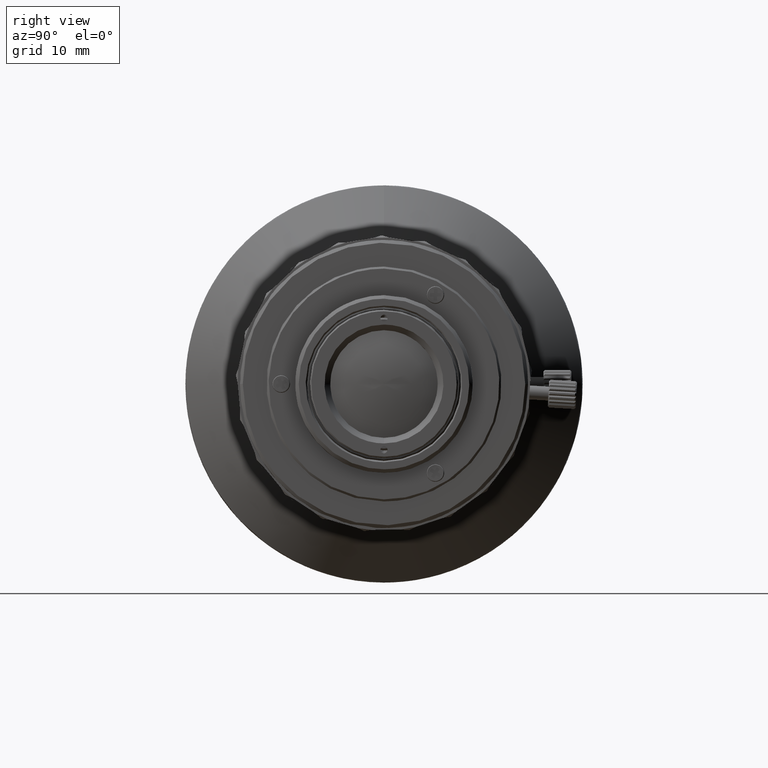
[diagram: clean part render]
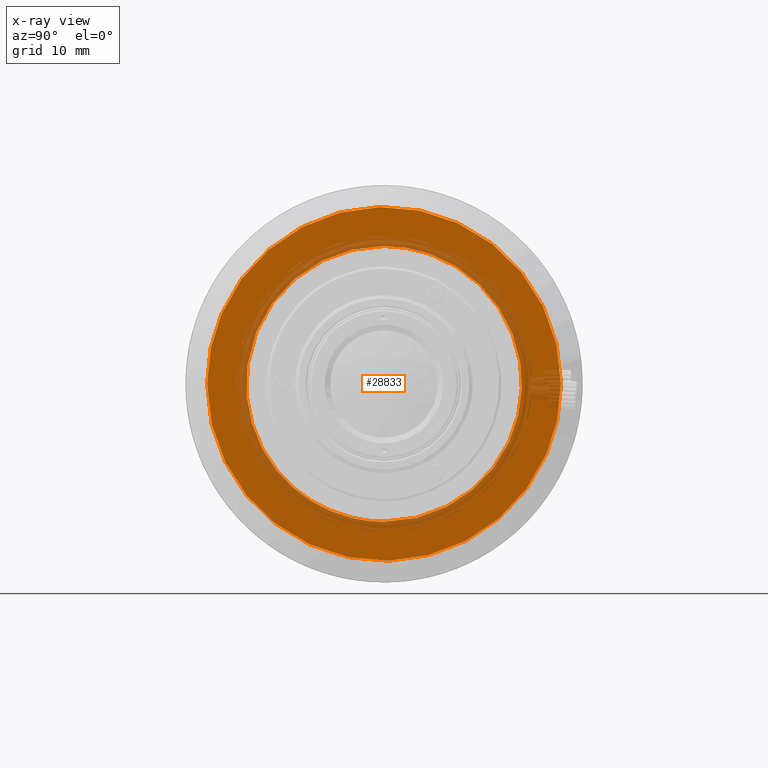
[diagram: x-ray — body ghosted, one internal face saturated and labeled with its STEP entity id]
A machine part, right view, then the same camera in x-ray: the body is ghosted and one INTERNAL B-rep face — a face not visible from any outside direction — is saturated and labeled: STEP entity #28833.
In plain terms, the highlighted face is a freeform B-spline surface patch.
Its self-contained STEP definition (entity closure, byte-faithful):
#469 = CARTESIAN_POINT ( 'NONE',  ( 4.496999999999999886, -25.29999999581704984, -1.514511709193290187E-09 ) ) ;
#4619 = B_SPLINE_CURVE_WITH_KNOTS ( 'NONE', 3,
 ( #23715, #40532, #10452, #51885, #5361, #47560, #22562, #71430, #46019, #65545, #11990, #64384, #75781, #22172, #69877, #16307, #10843, #58507, #28793, #70665, #64770, #53038, #23337, #42855, #72206, #7290, #31113, #29956, #6134, #42471, #43237, #49097, #19024, #54971 ),
 .UNSPECIFIED., .F., .F.,
 ( 4, 2, 2, 2, 2, 2, 2, 2, 2, 2, 2, 2, 2, 2, 2, 2, 4 ),
 ( 0.000000000000000000, 0.1963495408493619865, 0.3926990816987239730, 0.5890486225480860982, 0.7853981633974482790, 0.9817477042468105708, 1.178097245096172641, 1.374446785945534710, 1.570796326794897002, 1.767145867644259072, 1.963495408493621808, 2.159844949342983877, 2.356194490192346169, 2.552544031041708905, 2.748893571891070753, 2.945243112740433489, 3.141592653589795336 ),
 .UNSPECIFIED. ) ;
#5361 = CARTESIAN_POINT ( 'NONE',  ( 4.497000000000000774, -24.00833991355948172, -8.150826210906135572 ) ) ;
#5577 = CARTESIAN_POINT ( 'NONE',  ( 4.496999999999999886, -16.71797545820747644, 19.06162768022771914 ) ) ;
#5853 = CARTESIAN_POINT ( 'NONE',  ( 4.497000000000000774, 19.71688213099999487, 4.043995746673464198E-09 ) ) ;
#5965 = CARTESIAN_POINT ( 'NONE',  ( 4.496999999999999886, -25.13717368842239708, 3.310415635609866847 ) ) ;
#6134 = CARTESIAN_POINT ( 'NONE',  ( 4.497000000000000774, 22.73996447040854463, -11.21295545881867106 ) ) ;
#6354 = CARTESIAN_POINT ( 'NONE',  ( 4.496999999999999886, -8.150826210906176428, 24.00833991355944974 ) ) ;
#6731 = CARTESIAN_POINT ( 'NONE',  ( 4.497000000000000774, 25.29999998745120493, 1.657212400459659118 ) ) ;
#7290 = CARTESIAN_POINT ( 'NONE',  ( 4.497000000000000774, 19.06162768022772624, -16.71797545820746933 ) ) ;
#7970 = EDGE_CURVE ( 'NONE', #13488, #69201, #62034, .T. ) ;
#10452 = CARTESIAN_POINT ( 'NONE',  ( 4.496999999999999886, -25.13717375669865461, -3.310415635609904594 ) ) ;
#10529 = CARTESIAN_POINT ( 'NONE',  ( 4.496999999999999886, -5.392000166267690067E-09, 19.71688213609919771 ) ) ;
#10843 = CARTESIAN_POINT ( 'NONE',  ( 4.496999999999999886, -1.657212400459726176, -25.29999998745120493 ) ) ;
#11381 = FACE_OUTER_BOUND ( 'NONE', #13511, .T. ) ;
#11990 = CARTESIAN_POINT ( 'NONE',  ( 4.497000000000000774, -15.43384868033648694, -20.11548329250242872 ) ) ;
#12204 = CARTESIAN_POINT ( 'NONE',  ( 4.496999999999999886, 24.00833991355947106, 8.150826210906121361 ) ) ;
#12586 = CARTESIAN_POINT ( 'NONE',  ( 4.496999999999999886, 15.43384868033648694, 20.11548329250243228 ) ) ;
#13488 = VERTEX_POINT ( 'NONE', #71187 ) ;
#13511 = EDGE_LOOP ( 'NONE', ( #29295, #76852 ) ) ;
#15992 = CARTESIAN_POINT ( 'NONE',  ( 4.496999999999999886, -1.180294421193022236E-09, -19.71688213609919771 ) ) ;
#16307 = CARTESIAN_POINT ( 'NONE',  ( 4.496999999999999886, -3.310415635609844642, -25.13717368842240418 ) ) ;
#18078 = CARTESIAN_POINT ( 'NONE',  ( 4.496999999999999886, 8.150826210906148006, 24.00833991355946395 ) ) ;
#18355 = CARTESIAN_POINT ( 'NONE',  ( 4.497000000000001663, 11.54988213841837208, 19.71688213573782633 ) ) ;
#18467 = CARTESIAN_POINT ( 'NONE',  ( 4.496999999999999886, -20.11548329250240741, 15.43384868033652246 ) ) ;
#19024 = CARTESIAN_POINT ( 'NONE',  ( 4.496999999999998998, 25.29999998745119427, -1.657212400459730173 ) ) ;
#19122 = CARTESIAN_POINT ( 'NONE',  ( 4.497000000000000774, 19.71688213336891238, -11.54988214246236744 ) ) ;
#22172 = CARTESIAN_POINT ( 'NONE',  ( 4.496999999999999886, -8.150826210906151559, -24.00833991355946750 ) ) ;
#22562 = CARTESIAN_POINT ( 'NONE',  ( 4.497000000000000774, -21.95687904717117434, -12.67800519433657058 ) ) ;
#22782 = CARTESIAN_POINT ( 'NONE',  ( 4.496999999999999886, 22.73996447040853397, 11.21295545881867284 ) ) ;
#23337 = CARTESIAN_POINT ( 'NONE',  ( 4.496999999999999886, 12.67800519433654394, -21.95687904717119565 ) ) ;
#23552 = CARTESIAN_POINT ( 'NONE',  ( 4.497000000000000774, 25.13717375669866527, 3.310415635609905927 ) ) ;
#23715 = CARTESIAN_POINT ( 'NONE',  ( 4.496999999999999886, -25.29999999581704984, -1.514511709193290187E-09 ) ) ;
#23935 = CARTESIAN_POINT ( 'NONE',  ( 4.496999999999999886, 25.29999999581704984, -6.918822321917170458E-09 ) ) ;
#24320 = CARTESIAN_POINT ( 'NONE',  ( 4.496999999999999886, -6.561154656375727257, 24.49056146149653301 ) ) ;
#25923 = CARTESIAN_POINT ( 'NONE',  ( 4.496999999999999886, -25.29999999581704984, -1.514511709193290187E-09 ) ) ;
#28492 = CARTESIAN_POINT ( 'NONE',  ( 4.497000000000001663, -39.43376424683022208, 19.71688211482400988 ) ) ;
#28793 = CARTESIAN_POINT ( 'NONE',  ( 4.496999999999999886, 3.310415635609870844, -25.13717375669866883 ) ) ;
#28833 = ADVANCED_FACE ( 'NONE', ( #41074, #11381 ), #39709, .F. ) ;
#29295 = ORIENTED_EDGE ( 'NONE', *, *, #62842, .T. ) ;
#29956 = CARTESIAN_POINT ( 'NONE',  ( 4.496999999999999886, 21.95687904717119210, -12.67800512606026686 ) ) ;
#30168 = CARTESIAN_POINT ( 'NONE',  ( 4.496999999999999886, -19.06162768022772980, 16.71797545820747288 ) ) ;
#31113 = CARTESIAN_POINT ( 'NONE',  ( 4.496999999999999886, 20.11548329250240030, -15.43384868033653312 ) ) ;
#32900 =( BOUNDED_CURVE ( )  B_SPLINE_CURVE ( 3, ( #10529, #28492, #39430, #15992 ),
 .UNSPECIFIED., .F., .F. ) 
 B_SPLINE_CURVE_WITH_KNOTS ( ( 4, 4 ),
 ( -3.141592653589795336, 0.000000000000000000 ),
 .UNSPECIFIED. ) 
 CURVE ( )  GEOMETRIC_REPRESENTATION_ITEM ( )  RATIONAL_B_SPLINE_CURVE ( ( 1.000000000000000000, 0.3333333335299309419, 0.3333333335299309419, 1.000000000000000000 ) ) 
 REPRESENTATION_ITEM ( '' )  );
#33008 = CARTESIAN_POINT ( 'NONE',  ( 4.496999999999999886, -1.180294421193022236E-09, -19.71688213609919771 ) ) ;
#34881 = CARTESIAN_POINT ( 'NONE',  ( 4.496999999999999886, 12.67800512606031305, 21.95687904717116723 ) ) ;
#35205 = CARTESIAN_POINT ( 'NONE',  ( 4.496999999999999886, -25.60360000000000014, -25.60360000000000014 ) ) ;
#35655 = CARTESIAN_POINT ( 'NONE',  ( 4.496999999999999886, 3.310415635609845086, 25.13717368842240418 ) ) ;
#36028 = CARTESIAN_POINT ( 'NONE',  ( 4.496999999999999886, 21.95687904717117434, 12.67800519433656881 ) ) ;
#36414 = CARTESIAN_POINT ( 'NONE',  ( 4.496999999999999886, 20.11548329250242162, 15.43384861206022940 ) ) ;
#39430 = CARTESIAN_POINT ( 'NONE',  ( 4.496999999999999886, -39.43376424228311095, -19.71688212391822859 ) ) ;
#39709 = B_SPLINE_SURFACE_WITH_KNOTS ( 'NONE', 1, 1, ( 
 ( #35205, #66386 ),
 ( #72648, #59056 ) ),
 .UNSPECIFIED., .F., .F., .F.,
 ( 2, 2 ),
 ( 2, 2 ),
 ( 0.000000000000000000, 1.000000000000000000 ),
 ( 0.000000000000000000, 1.000000000000000000 ),
 .UNSPECIFIED. ) ;
#40532 = CARTESIAN_POINT ( 'NONE',  ( 4.496999999999998998, -25.29999998745120493, -1.657212400459658230 ) ) ;
#41074 = FACE_BOUND ( 'NONE', #62747, .T. ) ;
#41523 = CARTESIAN_POINT ( 'NONE',  ( 4.496999999999999886, -25.29999998745120493, 1.657212400459734392 ) ) ;
#41789 = CARTESIAN_POINT ( 'NONE',  ( 4.497000000000001663, 19.71688212863108092, 11.54988215055036171 ) ) ;
#42300 = CARTESIAN_POINT ( 'NONE',  ( 4.496999999999999886, -22.73996447040853042, 11.21295545881866573 ) ) ;
#42471 = CARTESIAN_POINT ( 'NONE',  ( 4.497000000000000774, 24.00833991355947816, -8.150826210906132019 ) ) ;
#42855 = CARTESIAN_POINT ( 'NONE',  ( 4.496999999999999886, 15.43384861206024894, -20.11548329250240741 ) ) ;
#43237 = CARTESIAN_POINT ( 'NONE',  ( 4.497000000000000774, 24.49056152977279766, -6.561154656375735250 ) ) ;
#46019 = CARTESIAN_POINT ( 'NONE',  ( 4.497000000000000774, -19.06162768022772624, -16.71797545820746933 ) ) ;
#46484 = CARTESIAN_POINT ( 'NONE',  ( 4.496999999999999886, -5.392000166267690067E-09, 19.71688213609919771 ) ) ;
#46630 = CARTESIAN_POINT ( 'NONE',  ( 4.496999999999999886, -24.00833991355947106, 8.150826210906133795 ) ) ;
#47560 = CARTESIAN_POINT ( 'NONE',  ( 4.496999999999999886, -22.73996447040854818, -11.21295545881867284 ) ) ;
#47783 = CARTESIAN_POINT ( 'NONE',  ( 4.496999999999999886, 6.561154656375753014, 24.49056152977279766 ) ) ;
#48438 = CARTESIAN_POINT ( 'NONE',  ( 4.497000000000000774, 11.54988214650636458, -19.71688213099999487 ) ) ;
#49097 = CARTESIAN_POINT ( 'NONE',  ( 4.496999999999999886, 25.13717368842240063, -3.310415635609870399 ) ) ;
#50633 = ORIENTED_EDGE ( 'NONE', *, *, #77318, .F. ) ;
#51885 = CARTESIAN_POINT ( 'NONE',  ( 4.496999999999998998, -24.49056146149653657, -6.561154656375691729 ) ) ;
#53038 = CARTESIAN_POINT ( 'NONE',  ( 4.496999999999999886, 11.21295545881863198, -22.73996447040855884 ) ) ;
#53263 = CARTESIAN_POINT ( 'NONE',  ( 4.496999999999999886, -24.49056152977280476, 6.561154656375730809 ) ) ;
#53634 = CARTESIAN_POINT ( 'NONE',  ( 4.496999999999999886, -21.95687904717119210, 12.67800512606027752 ) ) ;
#54017 = CARTESIAN_POINT ( 'NONE',  ( 4.496999999999999886, -1.657212400459726176, 25.29999998745120493 ) ) ;
#54971 = CARTESIAN_POINT ( 'NONE',  ( 4.496999999999999886, 25.29999999581704984, -6.918822321917170458E-09 ) ) ;
#55161 = ORIENTED_EDGE ( 'NONE', *, *, #66352, .F. ) ;
#56199 =( BOUNDED_CURVE ( )  B_SPLINE_CURVE ( 3, ( #71537, #48438, #19122, #5853, #41789, #18355, #67209 ),
 .UNSPECIFIED., .F., .F. ) 
 B_SPLINE_CURVE_WITH_KNOTS ( ( 4, 3, 4 ),
 ( -3.141592653589795336, -1.570796326794897668, 0.000000000000000000 ),
 .UNSPECIFIED. ) 
 CURVE ( )  GEOMETRIC_REPRESENTATION_ITEM ( )  RATIONAL_B_SPLINE_CURVE ( ( 1.000000000000000000, 0.8047378540760217192, 0.8047378540760217192, 1.000000000000000000, 0.8047378540760217192, 0.8047378540760217192, 1.000000000000000000 ) ) 
 REPRESENTATION_ITEM ( '' )  );
#58507 = CARTESIAN_POINT ( 'NONE',  ( 4.496999999999998998, 1.657212400459725510, -25.29999998745119782 ) ) ;
#58893 = VERTEX_POINT ( 'NONE', #33008 ) ;
#59056 = CARTESIAN_POINT ( 'NONE',  ( 4.496999999999999886, 25.60360000000000014, 25.60360000000000014 ) ) ;
#59116 = CARTESIAN_POINT ( 'NONE',  ( 4.496999999999999886, -15.43384861206024894, 20.11548329250240741 ) ) ;
#59385 = VERTEX_POINT ( 'NONE', #46484 ) ;
#59502 = CARTESIAN_POINT ( 'NONE',  ( 4.496999999999999886, -12.67800519433654927, 21.95687904717119210 ) ) ;
#59887 = CARTESIAN_POINT ( 'NONE',  ( 4.496999999999999886, 1.657212400459725954, 25.29999998745120493 ) ) ;
#60278 = CARTESIAN_POINT ( 'NONE',  ( 4.496999999999999886, 16.71797545820747288, 19.06162768022772624 ) ) ;
#62034 = B_SPLINE_CURVE_WITH_KNOTS ( 'NONE', 3,
 ( #23935, #6731, #23552, #76390, #12204, #22782, #36028, #36414, #72038, #60278, #12586, #34881, #76772, #18078, #47783, #35655, #59887, #54017, #70888, #24320, #6354, #71650, #59502, #59116, #5577, #30168, #18467, #53634, #42300, #46630, #53263, #5965, #41523, #469 ),
 .UNSPECIFIED., .F., .F.,
 ( 4, 2, 2, 2, 2, 2, 2, 2, 2, 2, 2, 2, 2, 2, 2, 2, 4 ),
 ( 0.000000000000000000, 0.1963495408493622085, 0.3926990816987244171, 0.5890486225480866533, 0.7853981633974488341, 0.9817477042468110149, 1.178097245096173307, 1.374446785945535376, 1.570796326794897668, 1.767145867644259960, 1.963495408493622030, 2.159844949342984322, 2.356194490192346613, 2.552544031041708905, 2.748893571891070753, 2.945243112740433045, 3.141592653589795336 ),
 .UNSPECIFIED. ) ;
#62747 = EDGE_LOOP ( 'NONE', ( #50633, #55161 ) ) ;
#62842 = EDGE_CURVE ( 'NONE', #69201, #13488, #4619, .T. ) ;
#64384 = CARTESIAN_POINT ( 'NONE',  ( 4.497000000000000774, -12.67800512606031482, -21.95687904717117789 ) ) ;
#64770 = CARTESIAN_POINT ( 'NONE',  ( 4.497000000000000774, 8.150826210906160441, -24.00833991355945329 ) ) ;
#65545 = CARTESIAN_POINT ( 'NONE',  ( 4.496999999999999886, -16.71797545820747288, -19.06162768022773690 ) ) ;
#66352 = EDGE_CURVE ( 'NONE', #58893, #59385, #56199, .T. ) ;
#66386 = CARTESIAN_POINT ( 'NONE',  ( 4.496999999999999886, 25.60360000000000014, -25.60360000000000014 ) ) ;
#67209 = CARTESIAN_POINT ( 'NONE',  ( 4.496999999999999886, -5.392000166267690067E-09, 19.71688213609919771 ) ) ;
#69201 = VERTEX_POINT ( 'NONE', #25923 ) ;
#69877 = CARTESIAN_POINT ( 'NONE',  ( 4.496999999999999886, -6.561154656375753014, -24.49056152977280121 ) ) ;
#70665 = CARTESIAN_POINT ( 'NONE',  ( 4.496999999999999886, 6.561154656375730809, -24.49056146149653301 ) ) ;
#70888 = CARTESIAN_POINT ( 'NONE',  ( 4.496999999999999886, -3.310415635609870844, 25.13717375669866883 ) ) ;
#71187 = CARTESIAN_POINT ( 'NONE',  ( 4.496999999999999886, 25.29999999581704984, -6.918822321917170458E-09 ) ) ;
#71430 = CARTESIAN_POINT ( 'NONE',  ( 4.497000000000000774, -20.11548329250241807, -15.43384861206023118 ) ) ;
#71537 = CARTESIAN_POINT ( 'NONE',  ( 4.496999999999999886, -1.180294421193022236E-09, -19.71688213609919771 ) ) ;
#71650 = CARTESIAN_POINT ( 'NONE',  ( 4.496999999999999886, -11.21295545881863021, 22.73996447040855173 ) ) ;
#72038 = CARTESIAN_POINT ( 'NONE',  ( 4.496999999999999886, 19.06162768022772269, 16.71797545820746578 ) ) ;
#72206 = CARTESIAN_POINT ( 'NONE',  ( 4.496999999999999886, 16.71797545820746578, -19.06162768022773335 ) ) ;
#72648 = CARTESIAN_POINT ( 'NONE',  ( 4.496999999999999886, -25.60360000000000014, 25.60360000000000014 ) ) ;
#75781 = CARTESIAN_POINT ( 'NONE',  ( 4.497000000000000774, -11.21295545881865685, -22.73996447040854463 ) ) ;
#76390 = CARTESIAN_POINT ( 'NONE',  ( 4.496999999999998998, 24.49056146149654012, 6.561154656375693506 ) ) ;
#76772 = CARTESIAN_POINT ( 'NONE',  ( 4.496999999999999886, 11.21295545881864619, 22.73996447040854463 ) ) ;
#76852 = ORIENTED_EDGE ( 'NONE', *, *, #7970, .T. ) ;
#77318 = EDGE_CURVE ( 'NONE', #59385, #58893, #32900, .T. ) ;